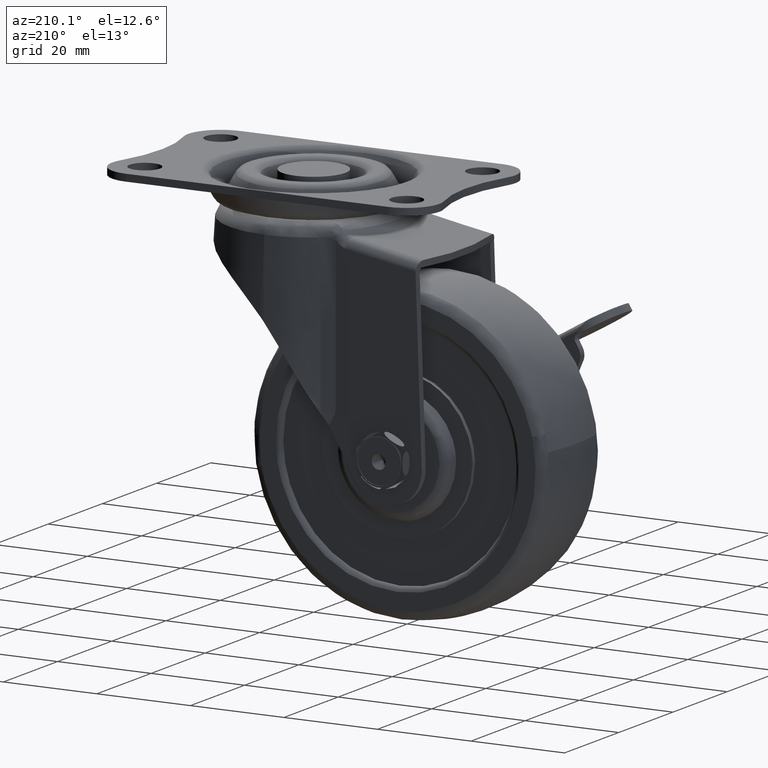
[diagram: clean part render]
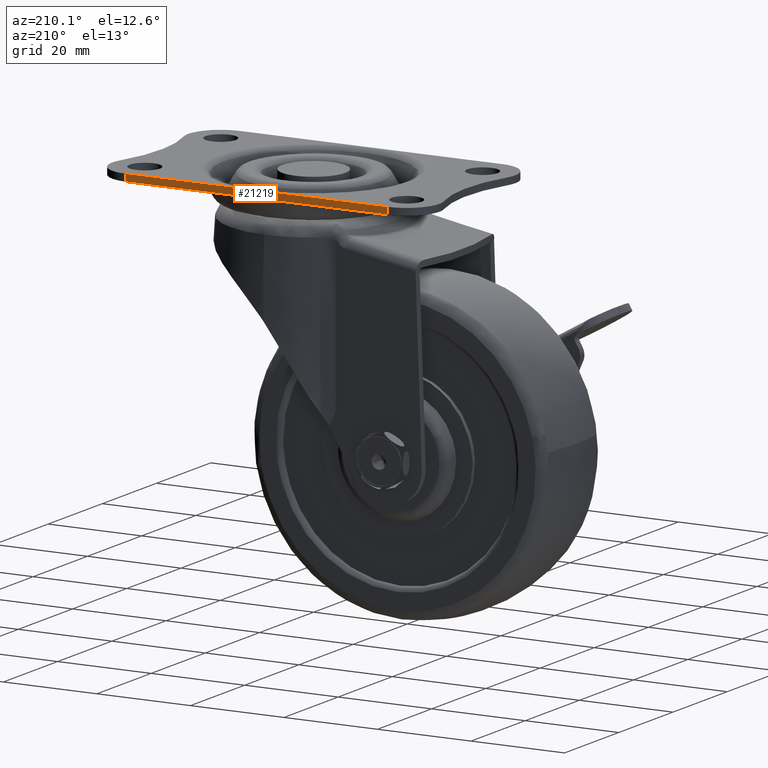
[diagram: same view with one face highlighted and labeled with its STEP entity id]
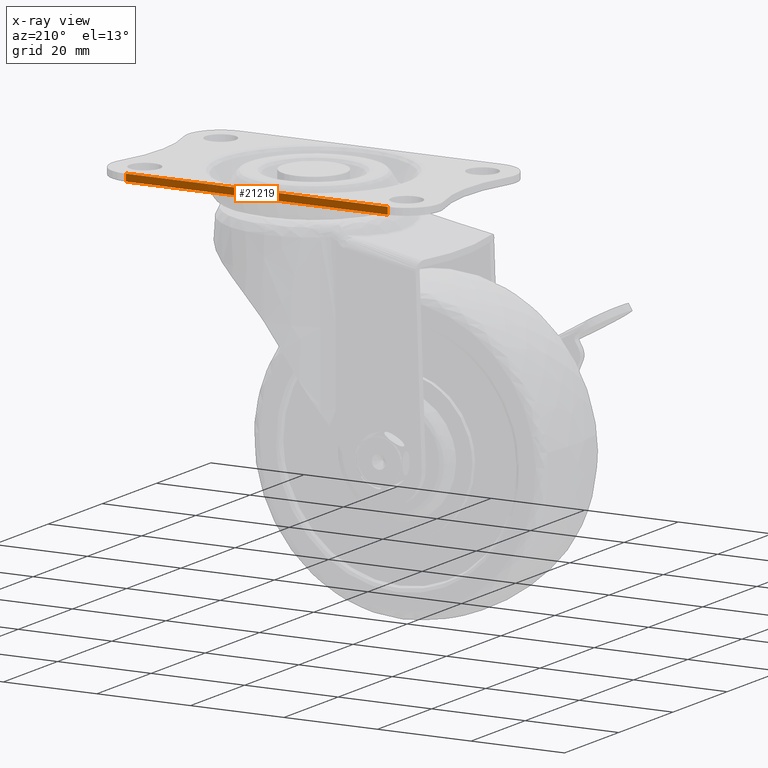
[diagram: x-ray of the same camera — body ghosted, the highlighted face saturated]
A machine part, auxiliary view. The second image highlights one B-rep face of the part: STEP entity #21219.
The next image is the same camera in x-ray: the body ghosted, the highlighted face saturated — about 0% of this face is hidden behind the body in this view.
In plain terms, the highlighted face is a freeform B-spline surface patch.
Its self-contained STEP definition (entity closure, byte-faithful):
#20566=CARTESIAN_POINT('',(-3.580766839262390,20.999994360576999,1.500000000000000));
#20567=VERTEX_POINT('',#20566);
#20568=CARTESIAN_POINT('',(3.580759339263660,20.999995639421051,1.500000000000000));
#20569=VERTEX_POINT('',#20568);
#20575=CARTESIAN_POINT('',(3.580759339263660,20.999995639421051,1.500000000000000));
#20576=CARTESIAN_POINT('',(2.689638183121855,20.999995480292242,1.220230893808072));
#20577=CARTESIAN_POINT('',(1.807946194483372,20.999995322847230,1.078973701584163));
#20578=CARTESIAN_POINT('',(0.904108515684187,20.999995161447629,0.934168515217104));
#20579=CARTESIAN_POINT('',(0.003601932227648,20.999995000642880,0.933879723213127));
#20580=CARTESIAN_POINT('',(-0.904943476535788,20.999994838402610,0.933588353162040));
#20581=CARTESIAN_POINT('',(-1.816882934986226,20.999994675556270,1.080407775138070));
#20582=CARTESIAN_POINT('',(-2.694150111944460,20.999994518901410,1.221645067422061));
#20583=CARTESIAN_POINT('',(-3.580766839262390,20.999994360576999,1.500000000000000));
#20584=B_SPLINE_CURVE_WITH_KNOTS('',2,(#20575,#20576,#20577,#20578,#20579,#20580,#20581,#20582,#20583),.UNSPECIFIED.,.F.,.U.,(3,2,2,2,3),(0.0,0.250000000000000,0.500000000000000,0.750000000000000,1.0),.UNSPECIFIED.);
#20585=EDGE_CURVE('',#20569,#20567,#20584,.T.);
#20731=CARTESIAN_POINT('',(28.000001329768750,20.999999999999400,0.0));
#20732=VERTEX_POINT('',#20731);
#20748=CARTESIAN_POINT('',(28.000003909537551,20.999999999999002,1.499999999999946));
#20749=VERTEX_POINT('',#20748);
#20750=CARTESIAN_POINT('',(28.000003909537551,20.999999999999002,1.499999999999946));
#20751=CARTESIAN_POINT('',(28.000001329768750,20.999999999999400,0.0));
#20752=QUASI_UNIFORM_CURVE('',1,(#20750,#20751),.UNSPECIFIED.,.F.,.U.);
#20753=EDGE_CURVE('',#20749,#20732,#20752,.T.);
#21018=CARTESIAN_POINT('',(-27.999998900442598,20.999992180288402,1.499999999999946));
#21019=VERTEX_POINT('',#21018);
#21020=CARTESIAN_POINT('',(-27.999999525442600,20.999989999999450,-2.775558E-013));
#21021=VERTEX_POINT('',#21020);
#21022=CARTESIAN_POINT('',(-27.999998900442598,20.999992180288402,1.499999999999946));
#21023=CARTESIAN_POINT('',(-27.999999525442600,20.999989999999450,-2.775558E-013));
#21024=QUASI_UNIFORM_CURVE('',1,(#21022,#21023),.UNSPECIFIED.,.F.,.U.);
#21025=EDGE_CURVE('',#21019,#21021,#21024,.T.);
#21067=CARTESIAN_POINT('',(28.000001329768750,20.999999999999400,0.0));
#21068=CARTESIAN_POINT('',(-27.999999525442600,20.999989999999450,-2.775558E-013));
#21069=QUASI_UNIFORM_CURVE('',1,(#21067,#21068),.UNSPECIFIED.,.F.,.U.);
#21070=EDGE_CURVE('',#20732,#21021,#21069,.T.);
#21138=CARTESIAN_POINT('',(28.000003909537551,20.999999999999002,1.499999999999946));
#21139=CARTESIAN_POINT('',(3.580759339263660,20.999995639421051,1.500000000000000));
#21140=QUASI_UNIFORM_CURVE('',1,(#21138,#21139),.UNSPECIFIED.,.F.,.U.);
#21141=EDGE_CURVE('',#20749,#20569,#21140,.T.);
#21144=CARTESIAN_POINT('',(-3.580766839262390,20.999994360576999,1.500000000000000));
#21145=CARTESIAN_POINT('',(-27.999998900442598,20.999992180288402,1.499999999999946));
#21146=QUASI_UNIFORM_CURVE('',1,(#21144,#21145),.UNSPECIFIED.,.F.,.U.);
#21147=EDGE_CURVE('',#20567,#21019,#21146,.T.);
#21206=CARTESIAN_POINT('',(-30.797200114168952,20.999989500499300,-0.074924997093000));
#21207=CARTESIAN_POINT('',(30.797205499621999,21.000000499501020,-0.074924997093000));
#21208=CARTESIAN_POINT('',(-30.797200114168952,20.999989500499300,1.574925037325858));
#21209=CARTESIAN_POINT('',(30.797205499621999,21.000000499501020,1.574925037325858));
#21210=B_SPLINE_SURFACE_WITH_KNOTS('',1,1,((#21206,#21208),(#21207,#21209)),.UNSPECIFIED.,.F.,.F.,.U.,(2,2),(2,2),(0.0,61.594405613791928),(0.041708334948495,0.958291687403247),.UNSPECIFIED.);
#21211=ORIENTED_EDGE('',*,*,#20585,.F.);
#21212=ORIENTED_EDGE('',*,*,#21141,.F.);
#21213=ORIENTED_EDGE('',*,*,#20753,.T.);
#21214=ORIENTED_EDGE('',*,*,#21070,.T.);
#21215=ORIENTED_EDGE('',*,*,#21025,.F.);
#21216=ORIENTED_EDGE('',*,*,#21147,.F.);
#21217=EDGE_LOOP('',(#21211,#21212,#21213,#21214,#21215,#21216));
#21218=FACE_OUTER_BOUND('',#21217,.T.);
#21219=ADVANCED_FACE('',(#21218),#21210,.F.);